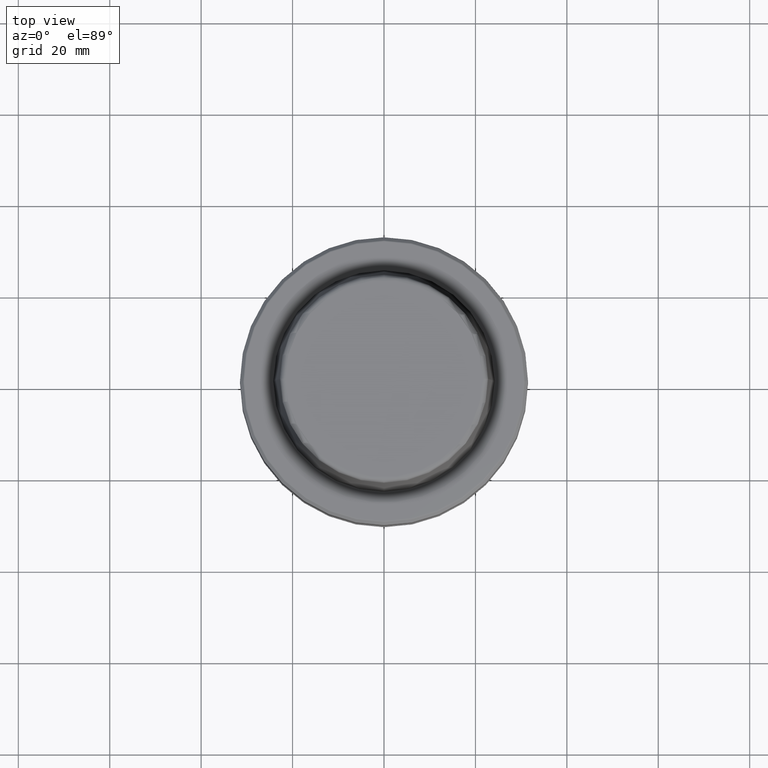
[diagram: clean part render]
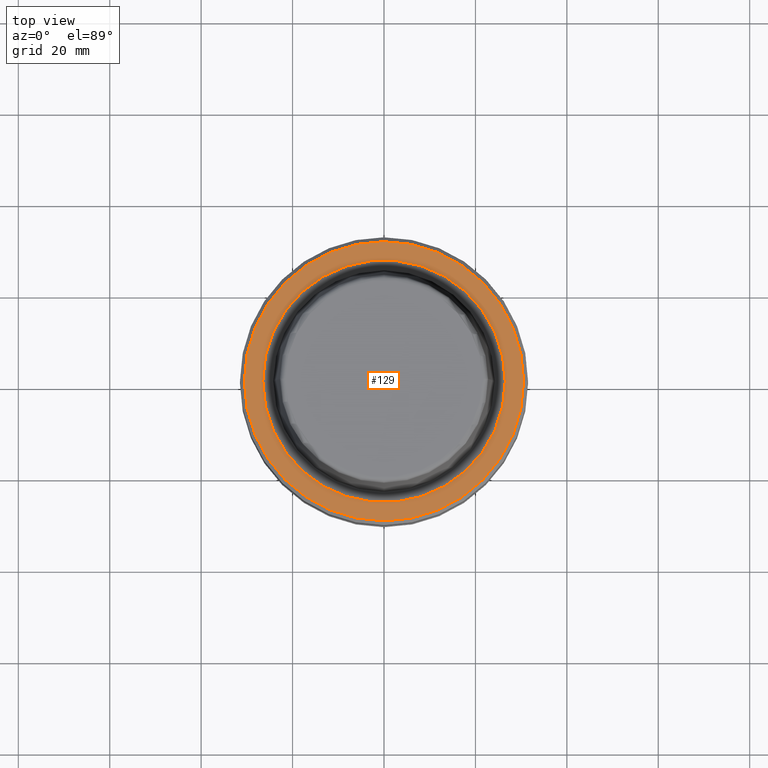
[diagram: same view with one face highlighted and labeled with its STEP entity id]
A machine part, top view. The second image highlights one B-rep face of the part: STEP entity #129.
In plain terms, the highlighted planar face has unit normal (0, 0, -1).
Its self-contained STEP definition (entity closure, byte-faithful):
#64 = DIRECTION ( 'NONE',  ( 1.000000000000000000, 0.0000000000000000000, 0.0000000000000000000 ) ) ;
#86 = AXIS2_PLACEMENT_3D ( 'NONE', #1173, #825, #1118 ) ;
#101 = EDGE_LOOP ( 'NONE', ( #731, #695 ) ) ;
#116 = VERTEX_POINT ( 'NONE', #264 ) ;
#129 = ADVANCED_FACE ( 'NONE', ( #750, #1225 ), #248, .F. ) ;
#138 = DIRECTION ( 'NONE',  ( 1.000000000000000000, 0.0000000000000000000, 0.0000000000000000000 ) ) ;
#141 = EDGE_CURVE ( 'NONE', #654, #380, #779, .T. ) ;
#184 = AXIS2_PLACEMENT_3D ( 'NONE', #841, #752, #64 ) ;
#248 = PLANE ( 'NONE',  #249 ) ;
#249 = AXIS2_PLACEMENT_3D ( 'NONE', #1112, #1124, #468 ) ;
#264 = CARTESIAN_POINT ( 'NONE',  ( 30.53431457505076100, 0.0000000000000000000, 0.0000000000000000000 ) ) ;
#275 = CARTESIAN_POINT ( 'NONE',  ( -26.52499999999999900, 3.248375634738354300E-015, 0.0000000000000000000 ) ) ;
#322 = DIRECTION ( 'NONE',  ( -0.0000000000000000000, -0.0000000000000000000, 1.000000000000000000 ) ) ;
#359 = EDGE_CURVE ( 'NONE', #380, #654, #869, .T. ) ;
#377 = EDGE_CURVE ( 'NONE', #116, #823, #653, .T. ) ;
#380 = VERTEX_POINT ( 'NONE', #1203 ) ;
#468 = DIRECTION ( 'NONE',  ( -1.000000000000000000, 0.0000000000000000000, -0.0000000000000000000 ) ) ;
#508 = CARTESIAN_POINT ( 'NONE',  ( -30.53431457505076100, 3.756694181974138600E-015, 0.0000000000000000000 ) ) ;
#510 = AXIS2_PLACEMENT_3D ( 'NONE', #637, #1209, #138 ) ;
#554 = ORIENTED_EDGE ( 'NONE', *, *, #359, .F. ) ;
#637 = CARTESIAN_POINT ( 'NONE',  ( 0.0000000000000000000, 0.0000000000000000000, 0.0000000000000000000 ) ) ;
#653 = CIRCLE ( 'NONE', #962, 30.53431457505076100 ) ;
#654 = VERTEX_POINT ( 'NONE', #275 ) ;
#695 = ORIENTED_EDGE ( 'NONE', *, *, #1226, .T. ) ;
#731 = ORIENTED_EDGE ( 'NONE', *, *, #377, .T. ) ;
#750 = FACE_BOUND ( 'NONE', #965, .T. ) ;
#752 = DIRECTION ( 'NONE',  ( -0.0000000000000000000, -0.0000000000000000000, 1.000000000000000000 ) ) ;
#779 = CIRCLE ( 'NONE', #184, 26.52499999999999900 ) ;
#802 = DIRECTION ( 'NONE',  ( 1.000000000000000000, 0.0000000000000000000, 0.0000000000000000000 ) ) ;
#823 = VERTEX_POINT ( 'NONE', #508 ) ;
#825 = DIRECTION ( 'NONE',  ( -0.0000000000000000000, -0.0000000000000000000, 1.000000000000000000 ) ) ;
#841 = CARTESIAN_POINT ( 'NONE',  ( 0.0000000000000000000, 0.0000000000000000000, 0.0000000000000000000 ) ) ;
#850 = CIRCLE ( 'NONE', #86, 30.53431457505076100 ) ;
#869 = CIRCLE ( 'NONE', #510, 26.52499999999999900 ) ;
#943 = ORIENTED_EDGE ( 'NONE', *, *, #141, .F. ) ;
#962 = AXIS2_PLACEMENT_3D ( 'NONE', #991, #322, #802 ) ;
#965 = EDGE_LOOP ( 'NONE', ( #554, #943 ) ) ;
#991 = CARTESIAN_POINT ( 'NONE',  ( 0.0000000000000000000, 0.0000000000000000000, 0.0000000000000000000 ) ) ;
#1112 = CARTESIAN_POINT ( 'NONE',  ( 0.0000000000000000000, 26.52499999999999900, -1.111307226797642000E-015 ) ) ;
#1118 = DIRECTION ( 'NONE',  ( 1.000000000000000000, 0.0000000000000000000, 0.0000000000000000000 ) ) ;
#1124 = DIRECTION ( 'NONE',  ( 0.0000000000000000000, 0.0000000000000000000, -1.000000000000000000 ) ) ;
#1173 = CARTESIAN_POINT ( 'NONE',  ( 0.0000000000000000000, 0.0000000000000000000, 0.0000000000000000000 ) ) ;
#1203 = CARTESIAN_POINT ( 'NONE',  ( 26.52499999999999900, 0.0000000000000000000, 0.0000000000000000000 ) ) ;
#1209 = DIRECTION ( 'NONE',  ( -0.0000000000000000000, -0.0000000000000000000, 1.000000000000000000 ) ) ;
#1225 = FACE_OUTER_BOUND ( 'NONE', #101, .T. ) ;
#1226 = EDGE_CURVE ( 'NONE', #823, #116, #850, .T. ) ;